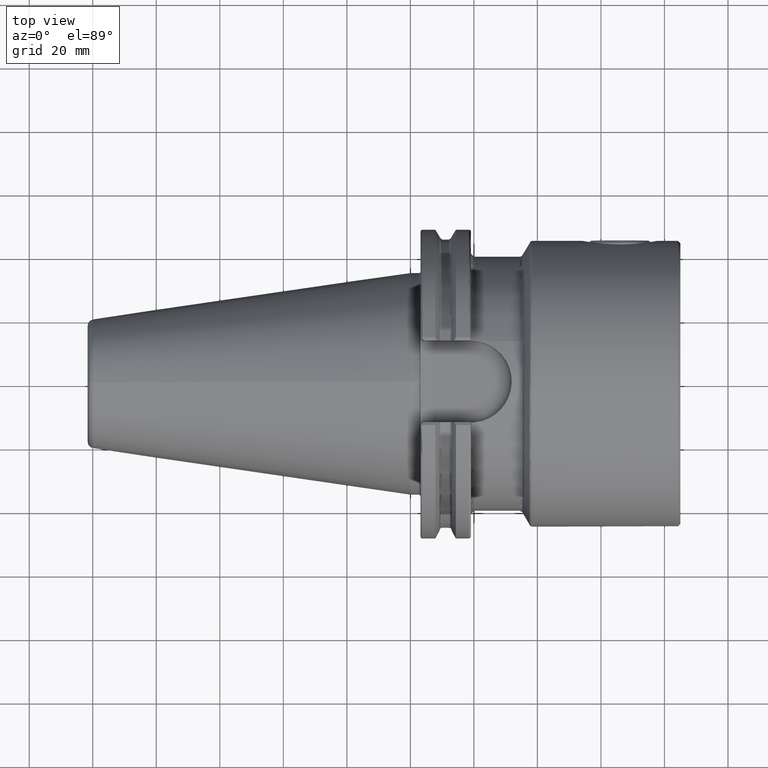
[diagram: clean part render]
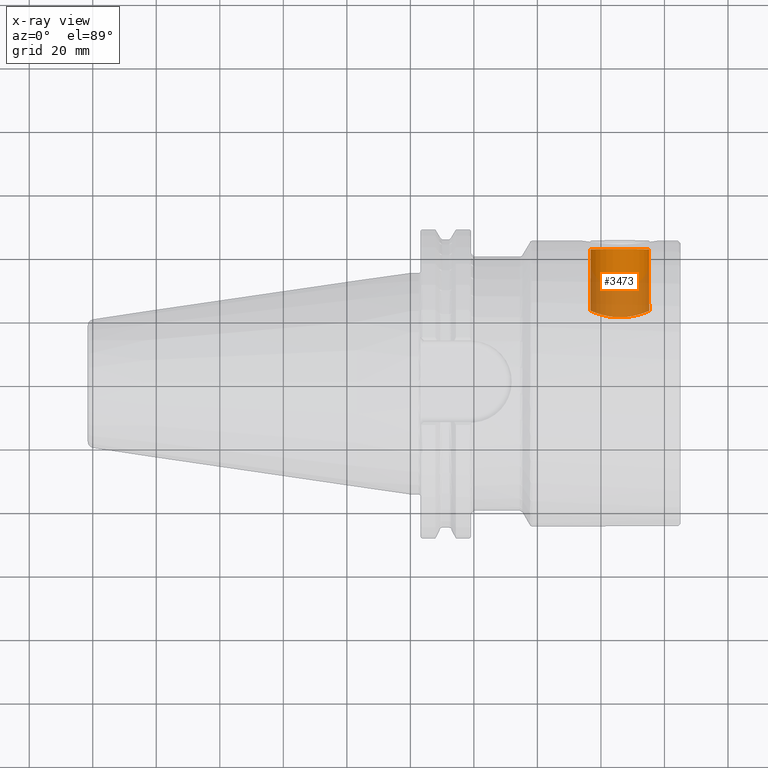
[diagram: x-ray — body ghosted, one internal face saturated and labeled with its STEP entity id]
A machine part, top view, then the same camera in x-ray: the body is ghosted and one INTERNAL B-rep face — a face not visible from any outside direction — is saturated and labeled: STEP entity #3473.
In plain terms, the highlighted cylindrical surface (bore or boss wall) has radius 9.25 mm, axis along (0, 1, 0).
Its self-contained STEP definition (entity closure, byte-faithful):
#13 = CARTESIAN_POINT ( 'NONE',  ( 74.37318094358175800, 22.67985483246137000, -3.834641862677420100 ) ) ;
#20 = EDGE_CURVE ( 'NONE', #2175, #2175, #1344, .T. ) ;
#31 = CARTESIAN_POINT ( 'NONE',  ( 74.36825944538995300, 22.67802924359497800, 3.845264746224574400 ) ) ;
#123 = CARTESIAN_POINT ( 'NONE',  ( 63.53843244400278700, 21.19363495138362200, -8.935271346167933600 ) ) ;
#319 = VERTEX_POINT ( 'NONE', #2612 ) ;
#330 = CARTESIAN_POINT ( 'NONE',  ( 72.91121938614600100, 22.17504628126948800, 6.120614142657313300 ) ) ;
#345 = CARTESIAN_POINT ( 'NONE',  ( 73.95499956081120300, 22.52775263180408100, -4.644808859996883800 ) ) ;
#362 = CARTESIAN_POINT ( 'NONE',  ( 57.93287601647740800, 22.53025428856012300, 4.653080061109656100 ) ) ;
#383 = CARTESIAN_POINT ( 'NONE',  ( 68.95551748729268100, 21.26423544707647700, -8.768995390963789700 ) ) ;
#402 = CARTESIAN_POINT ( 'NONE',  ( 57.29803548269823900, 22.76581409181966700, 3.285983795535159000 ) ) ;
#422 = CARTESIAN_POINT ( 'NONE',  ( 66.56698520808086500, 21.06476354708774300, -9.234547370571734200 ) ) ;
#439 = CARTESIAN_POINT ( 'NONE',  ( 59.20161865045000800, 22.11191985927199300, -6.333399455626933500 ) ) ;
#473 = CARTESIAN_POINT ( 'NONE',  ( 58.43664510871475000, 22.35762653107053000, -5.403840974638820100 ) ) ;
#609 = FACE_OUTER_BOUND ( 'NONE', #1401, .T. ) ;
#711 = CARTESIAN_POINT ( 'NONE',  ( 72.91769757989727900, 22.17702190563015600, -6.113736853857651500 ) ) ;
#724 = CARTESIAN_POINT ( 'NONE',  ( 57.19378689429589700, 22.80574438590804900, 2.997439455111363200 ) ) ;
#743 = CARTESIAN_POINT ( 'NONE',  ( 61.30115681594670500, 21.55948189934879600, 8.019747742772992200 ) ) ;
#759 = CARTESIAN_POINT ( 'NONE',  ( 71.59443962718442800, 21.79594716915804400, 7.352672172764505000 ) ) ;
#776 = CARTESIAN_POINT ( 'NONE',  ( 58.43632136965457800, 22.35772823645352500, 5.403504991712144300 ) ) ;
#795 = CARTESIAN_POINT ( 'NONE',  ( 56.70000000000000300, 23.00000000000000000, -0.3090120417888183600 ) ) ;
#829 = CARTESIAN_POINT ( 'NONE',  ( 60.30018778170703800, 21.79731260911410500, -7.348685195571654600 ) ) ;
#849 = CARTESIAN_POINT ( 'NONE',  ( 61.84318496767521400, 21.45309093139445600, -8.293874765640223900 ) ) ;
#981 = DIRECTION ( 'NONE',  ( -0.0000000000000000000, 1.000000000000000000, -0.0000000000000000000 ) ) ;
#1044 = DIRECTION ( 'NONE',  ( 0.0000000000000000000, 0.0000000000000000000, 1.000000000000000000 ) ) ;
#1091 = CARTESIAN_POINT ( 'NONE',  ( 57.64815857164116200, 22.63429424833480000, 4.124154089150406900 ) ) ;
#1104 = CARTESIAN_POINT ( 'NONE',  ( 72.06470085349407400, 21.92404316639862600, 6.966414163515568500 ) ) ;
#1124 = CARTESIAN_POINT ( 'NONE',  ( 70.60132370503882300, 21.56395979851402000, -8.001195893153772300 ) ) ;
#1146 = CARTESIAN_POINT ( 'NONE',  ( 66.24465865237624500, 21.05780431670219600, 9.250344723647366200 ) ) ;
#1163 = CARTESIAN_POINT ( 'NONE',  ( 73.95179159905723100, 22.52661267774075100, 4.650311534830365200 ) ) ;
#1182 = CARTESIAN_POINT ( 'NONE',  ( 66.26117113111726600, 21.05804722065372700, -9.249791743786028400 ) ) ;
#1237 = CARTESIAN_POINT ( 'NONE',  ( 67.18046104105722800, 21.09164827416971000, -9.172976698583964300 ) ) ;
#1254 = CARTESIAN_POINT ( 'NONE',  ( 62.11594035132666400, 21.40238431359186700, -8.423393089916370300 ) ) ;
#1344 = CIRCLE ( 'NONE', #3661, 9.250000000000008900 ) ;
#1401 = EDGE_LOOP ( 'NONE', ( #1806 ) ) ;
#1479 = CARTESIAN_POINT ( 'NONE',  ( 56.94059169287179100, 22.90423378642228200, 2.117855153176965800 ) ) ;
#1501 = CARTESIAN_POINT ( 'NONE',  ( 75.19967015538784900, 22.99986734516439000, 0.3142199477699195200 ) ) ;
#1521 = CARTESIAN_POINT ( 'NONE',  ( 68.36215725705452000, 21.18733676187316900, 8.950621855871450100 ) ) ;
#1534 = CARTESIAN_POINT ( 'NONE',  ( 65.94999999999997400, 42.25000000000000700, 9.250000000000008900 ) ) ;
#1538 = CARTESIAN_POINT ( 'NONE',  ( 74.23861321620788100, 22.63008437867838700, 4.117396886119099300 ) ) ;
#1553 = CARTESIAN_POINT ( 'NONE',  ( 56.82220860010240000, 22.95105774788682900, -1.529014964918407300 ) ) ;
#1572 = CARTESIAN_POINT ( 'NONE',  ( 67.48456193847960100, 21.11170774706265600, -9.126888498302243100 ) ) ;
#1608 = CARTESIAN_POINT ( 'NONE',  ( 58.99755708899732600, 22.17523892380352300, -6.108722987816656200 ) ) ;
#1806 = ORIENTED_EDGE ( 'NONE', *, *, #3411, .F. ) ;
#1851 = CARTESIAN_POINT ( 'NONE',  ( 63.52774075450416500, 21.19484589518094400, 8.932405519501236000 ) ) ;
#1866 = EDGE_LOOP ( 'NONE', ( #4600 ) ) ;
#1871 = CARTESIAN_POINT ( 'NONE',  ( 74.89520282815304600, 22.87884751820499600, 2.433828018288704400 ) ) ;
#1890 = CARTESIAN_POINT ( 'NONE',  ( 75.07771873094745300, 22.95102670388427400, 1.530251248508440500 ) ) ;
#1906 = CARTESIAN_POINT ( 'NONE',  ( 63.82698975968441600, 21.16260510928403700, 9.008242389675631400 ) ) ;
#1924 = CARTESIAN_POINT ( 'NONE',  ( 75.18436125754901400, 22.99369807309387100, 0.6182317666438693600 ) ) ;
#1976 = CARTESIAN_POINT ( 'NONE',  ( 63.83615594546124300, 21.16165646275485200, -9.010471075840783300 ) ) ;
#1995 = CARTESIAN_POINT ( 'NONE',  ( 56.69999999999998900, 23.00000000000000000, 7.860465750519907100E-016 ) ) ;
#2016 = CARTESIAN_POINT ( 'NONE',  ( 59.83882950796587600, 21.92303128854130600, -6.969683868817088300 ) ) ;
#2175 = VERTEX_POINT ( 'NONE', #1534 ) ;
#2226 = CARTESIAN_POINT ( 'NONE',  ( 62.94556854798175000, 21.26924448629885900, 8.753776320384806900 ) ) ;
#2242 = CARTESIAN_POINT ( 'NONE',  ( 56.76130549426024900, 22.97515083549966500, 1.224494694860716900 ) ) ;
#2262 = CARTESIAN_POINT ( 'NONE',  ( 73.79970256400379500, 22.47288908924734900, -4.902498739056554200 ) ) ;
#2281 = CARTESIAN_POINT ( 'NONE',  ( 75.12352879055167400, 22.96933507337031300, 1.225564311298722700 ) ) ;
#2302 = CARTESIAN_POINT ( 'NONE',  ( 58.61781830278485500, 22.29721233824237500, 5.647290794377923400 ) ) ;
#2449 = FACE_OUTER_BOUND ( 'NONE', #1866, .T. ) ;
#2602 = CARTESIAN_POINT ( 'NONE',  ( 70.06957500885417300, 21.44993754763875800, 8.304458214595291200 ) ) ;
#2612 = CARTESIAN_POINT ( 'NONE',  ( 56.69999999999997400, 23.00000000000000400, 0.0000000000000000000 ) ) ;
#2625 = CARTESIAN_POINT ( 'NONE',  ( 74.72277930275547000, 22.81123645810690100, -2.994772946053001500 ) ) ;
#2643 = CARTESIAN_POINT ( 'NONE',  ( 70.85833020080373500, 21.62107966248620600, -7.846029300588530700 ) ) ;
#2660 = CARTESIAN_POINT ( 'NONE',  ( 71.60293849274083300, 21.79818192530106200, -7.346040496794963700 ) ) ;
#2677 = CARTESIAN_POINT ( 'NONE',  ( 69.79283746851925200, 21.40395216437903500, -8.419416789412220900 ) ) ;
#2698 = CARTESIAN_POINT ( 'NONE',  ( 61.04884118523821000, 21.61943795400068800, -7.850567197590208900 ) ) ;
#2716 = CARTESIAN_POINT ( 'NONE',  ( 58.61541116081528500, 22.29800332623780400, -5.644179792736731600 ) ) ;
#2728 = CARTESIAN_POINT ( 'NONE',  ( 57.17968587677237500, 22.81026697744991700, -3.002854141009905200 ) ) ;
#2748 = CARTESIAN_POINT ( 'NONE',  ( 65.34641837554706000, 21.05777556806848900, -9.250410170778058800 ) ) ;
#2852 = CARTESIAN_POINT ( 'NONE',  ( 65.94999999999997400, 27.41863702254933300, 0.0000000000000000000 ) ) ;
#2900 = CARTESIAN_POINT ( 'NONE',  ( 56.69999999999998900, 23.00000000000000000, 7.860465750519907100E-016 ) ) ;
#2910 = CARTESIAN_POINT ( 'NONE',  ( 65.94999999999997400, 42.25000000000000700, 0.0000000000000000000 ) ) ;
#2978 = CARTESIAN_POINT ( 'NONE',  ( 75.08006970914314600, 22.95196361202553000, -1.515862313309641200 ) ) ;
#2998 = CARTESIAN_POINT ( 'NONE',  ( 75.20031932413850500, 23.00012842377660900, -0.2944903402801087300 ) ) ;
#3011 = CARTESIAN_POINT ( 'NONE',  ( 61.82940112784542900, 21.45035359446607300, 8.303290013724648600 ) ) ;
#3034 = CARTESIAN_POINT ( 'NONE',  ( 68.37876416545066100, 21.18923523841283800, -8.946144456832238100 ) ) ;
#3054 = CARTESIAN_POINT ( 'NONE',  ( 56.69999999999996000, 23.00000000000000000, 0.6180240835776084100 ) ) ;
#3072 = CARTESIAN_POINT ( 'NONE',  ( 62.95752937783316800, 21.26756649924721300, -8.757845150621054800 ) ) ;
#3090 = CARTESIAN_POINT ( 'NONE',  ( 57.00182955938933600, 22.88001656165019100, -2.420866823626435200 ) ) ;
#3125 = CARTESIAN_POINT ( 'NONE',  ( 64.74014801687302200, 21.08413413123854200, -9.191107711305074100 ) ) ;
#3211 = CYLINDRICAL_SURFACE ( 'NONE', #4298, 9.250000000000008900 ) ;
#3344 = CARTESIAN_POINT ( 'NONE',  ( 62.66152149113253200, 21.31142415393416600, 8.650940649780359600 ) ) ;
#3362 = CARTESIAN_POINT ( 'NONE',  ( 60.29672047006202700, 21.79814410132304300, 7.346327474596805000 ) ) ;
#3383 = CARTESIAN_POINT ( 'NONE',  ( 73.29065695613979900, 22.29850373218937400, 5.660323573865496400 ) ) ;
#3403 = CARTESIAN_POINT ( 'NONE',  ( 59.20080081126639000, 22.11218202662017900, 6.332437169207393500 ) ) ;
#3411 = EDGE_CURVE ( 'NONE', #319, #319, #3487, .T. ) ;
#3417 = CARTESIAN_POINT ( 'NONE',  ( 58.99977216720088100, 22.17454523870798900, 6.111228585924970400 ) ) ;
#3473 = ADVANCED_FACE ( 'NONE', ( #609, #2449 ), #3211, .F. ) ;
#3487 = B_SPLINE_CURVE_WITH_KNOTS ( 'NONE', 3,
 ( #2900, #3054, #2242, #1479, #3789, #724, #402, #1091, #362, #776, #2302, #3417, #3403, #4115, #3362, #743, #3011, #3344, #2226, #1851, #1906, #4540, #4097, #1146, #4466, #4867, #4165, #1521, #4522, #2602, #4886, #759, #1104, #330, #3383, #3756, #1163, #1538, #31, #4131, #1871, #1890, #2281, #1924, #1501, #2998, #4503, #4484, #2978, #3736, #2625, #13, #3810, #345, #2262, #4146, #711, #4903, #2660, #2643, #1124, #3772, #2677, #383, #3034, #1572, #1237, #422, #1182, #2748, #3125, #1976, #123, #3072, #4197, #1254, #849, #4183, #2698, #829, #2016, #439, #1608, #2716, #473, #3490, #3863, #2728, #3090, #1553, #3829, #4233, #795, #1995 ),
 .UNSPECIFIED., .T., .F.,
 ( 4, 2, 2, 2, 2, 2, 2, 2, 2, 2, 2, 2, 2, 2, 2, 2, 2, 2, 2, 2, 2, 2, 2, 2, 2, 2, 2, 2, 2, 2, 2, 2, 2, 2, 2, 2, 2, 2, 2, 2, 2, 2, 2, 2, 2, 2, 4 ),
 ( 0.0000000000000000000, 0.001826421625462603300, 0.002739632438193904900, 0.003652843250925205800, 0.005479264876387810600, 0.006392475689119118400, 0.007305686501850426300, 0.009132108127313055800, 0.01095852975277568700, 0.01187174056550700300, 0.01278495137823831800, 0.01461137300370094400, 0.01552458381643227900, 0.01643779462916361200, 0.01826421625462632300, 0.02009063788008903400, 0.02191705950555174500, 0.02374348113101446000, 0.02465669194374580500, 0.02556990275647715000, 0.02739632438193985400, 0.02830953519467120600, 0.02922274600740256200, 0.03013595682013391400, 0.03104916763286527000, 0.03287558925832798100, 0.03378880007105932600, 0.03470201088379067100, 0.03652843250925336100, 0.03835485413471605800, 0.03926806494744740400, 0.04018127576017875600, 0.04200769738564141100, 0.04292090819837275600, 0.04383411901110410200, 0.04566054063656679200, 0.04657375144929814400, 0.04748696226202948900, 0.04840017307476084100, 0.04931338388749218600, 0.05113980551295488300, 0.05205301632568622900, 0.05296622713841757400, 0.05479264876388025000, 0.05661907038934293300, 0.05753228120207428500, 0.05844549201480563100 ),
 .UNSPECIFIED. ) ;
#3490 = CARTESIAN_POINT ( 'NONE',  ( 57.93643174260673600, 22.52901741615943000, -4.658671461955656800 ) ) ;
#3661 = AXIS2_PLACEMENT_3D ( 'NONE', #2910, #4048, #1044 ) ;
#3736 = CARTESIAN_POINT ( 'NONE',  ( 74.89999269216784200, 22.88072796493983300, -2.415404023562774900 ) ) ;
#3756 = CARTESIAN_POINT ( 'NONE',  ( 73.79420756522814900, 22.47096400609167000, 4.911355164388203900 ) ) ;
#3772 = CARTESIAN_POINT ( 'NONE',  ( 70.06879566320320400, 21.45539623726614300, -8.287911088715604900 ) ) ;
#3789 = CARTESIAN_POINT ( 'NONE',  ( 57.01502200150444800, 22.87497630329857800, 2.412898548626429800 ) ) ;
#3810 = CARTESIAN_POINT ( 'NONE',  ( 74.24174966282767200, 22.63123357535269900, -4.111101414887465400 ) ) ;
#3829 = CARTESIAN_POINT ( 'NONE',  ( 56.77677670067055300, 22.96921289828978600, -1.228101016273054600 ) ) ;
#3863 = CARTESIAN_POINT ( 'NONE',  ( 57.65066117781699300, 22.63335800644372500, -4.129953743914333200 ) ) ;
#4014 = DIRECTION ( 'NONE',  ( 0.0000000000000000000, 0.0000000000000000000, 1.000000000000000000 ) ) ;
#4048 = DIRECTION ( 'NONE',  ( -0.0000000000000000000, 1.000000000000000000, -0.0000000000000000000 ) ) ;
#4097 = CARTESIAN_POINT ( 'NONE',  ( 65.32879297345203900, 21.05826663916660400, 9.249292229197333600 ) ) ;
#4115 = CARTESIAN_POINT ( 'NONE',  ( 59.83371714977171500, 21.92450758992607600, 6.964867899727124700 ) ) ;
#4131 = CARTESIAN_POINT ( 'NONE',  ( 74.71662185028589000, 22.80887616257575000, 3.011885384258433000 ) ) ;
#4146 = CARTESIAN_POINT ( 'NONE',  ( 73.29897232543430600, 22.30126787734580800, -5.649283377483866900 ) ) ;
#4165 = CARTESIAN_POINT ( 'NONE',  ( 67.46794194357791200, 21.11050584072155400, 9.129663784379920000 ) ) ;
#4183 = CARTESIAN_POINT ( 'NONE',  ( 61.30926928673774500, 21.56166882117348700, -8.007365783129760200 ) ) ;
#4197 = CARTESIAN_POINT ( 'NONE',  ( 62.67311267384731400, 21.30962297802094700, -8.655378327290836900 ) ) ;
#4233 = CARTESIAN_POINT ( 'NONE',  ( 56.71564073874549900, 22.99369710232606700, -0.6187623450202195400 ) ) ;
#4298 = AXIS2_PLACEMENT_3D ( 'NONE', #2852, #981, #4014 ) ;
#4466 = CARTESIAN_POINT ( 'NONE',  ( 66.55303452263721900, 21.06436451559624600, 9.235455513473750600 ) ) ;
#4484 = CARTESIAN_POINT ( 'NONE',  ( 75.12573321964966100, 22.97021607102851700, -1.209285869300018400 ) ) ;
#4503 = CARTESIAN_POINT ( 'NONE',  ( 75.18566051919893300, 22.99422039246914900, -0.5991887899327508200 ) ) ;
#4522 = CARTESIAN_POINT ( 'NONE',  ( 68.94284886659863800, 21.26231565193047500, 8.773698202766869500 ) ) ;
#4540 = CARTESIAN_POINT ( 'NONE',  ( 64.72440477594972200, 21.08516809933597400, 9.188733866715248100 ) ) ;
#4600 = ORIENTED_EDGE ( 'NONE', *, *, #20, .T. ) ;
#4867 = CARTESIAN_POINT ( 'NONE',  ( 67.16580836151092600, 21.09080348830591600, 9.174916850027864600 ) ) ;
#4886 = CARTESIAN_POINT ( 'NONE',  ( 70.59873657074385300, 21.55955393787101600, 8.019397426297340200 ) ) ;
#4903 = CARTESIAN_POINT ( 'NONE',  ( 72.06440642927694300, 21.92390150087972200, -6.967110010667287400 ) ) ;